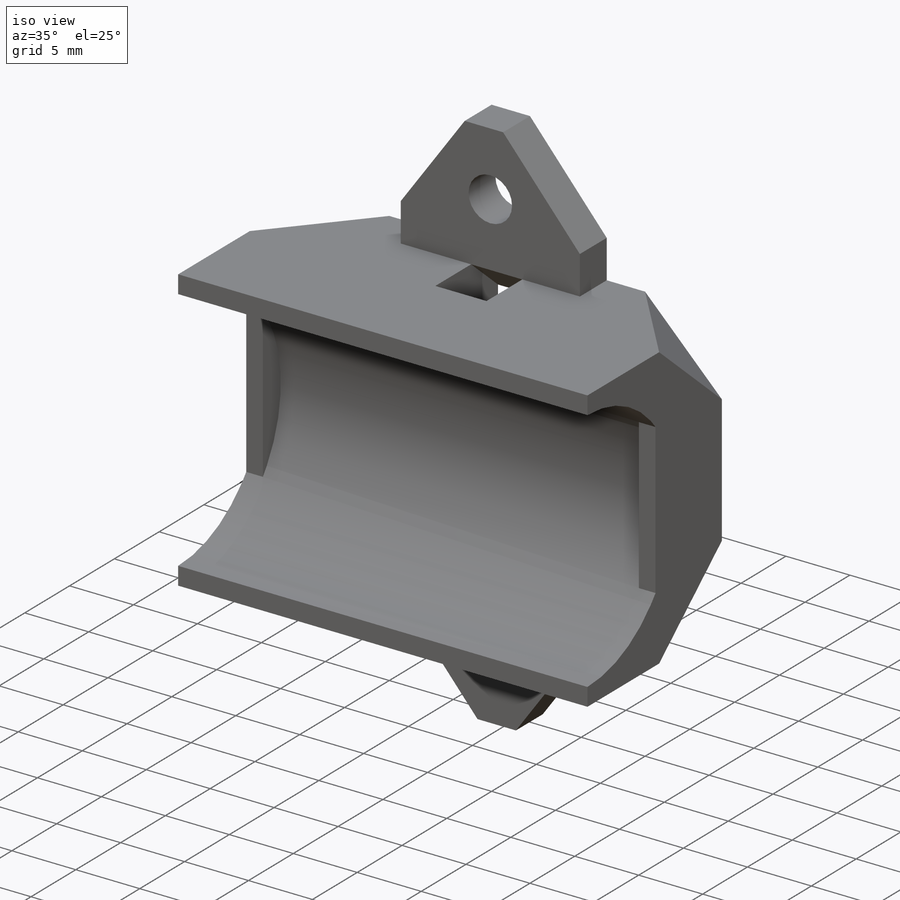
[diagram: iso view]
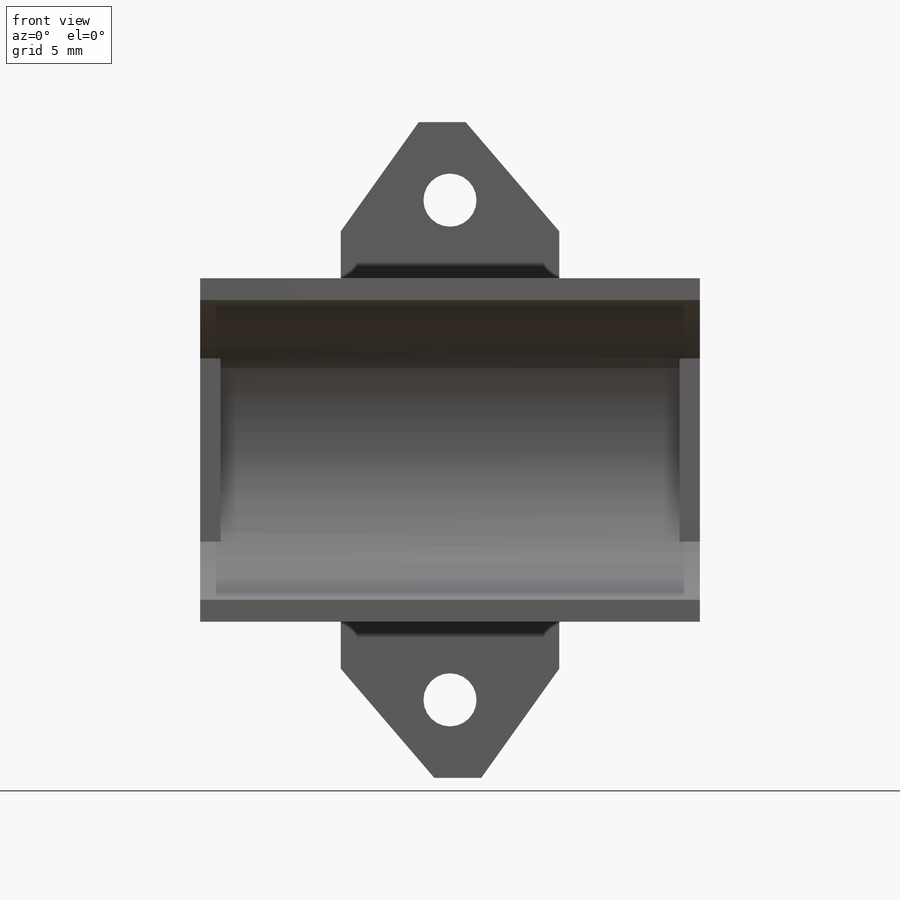
[diagram: front view]
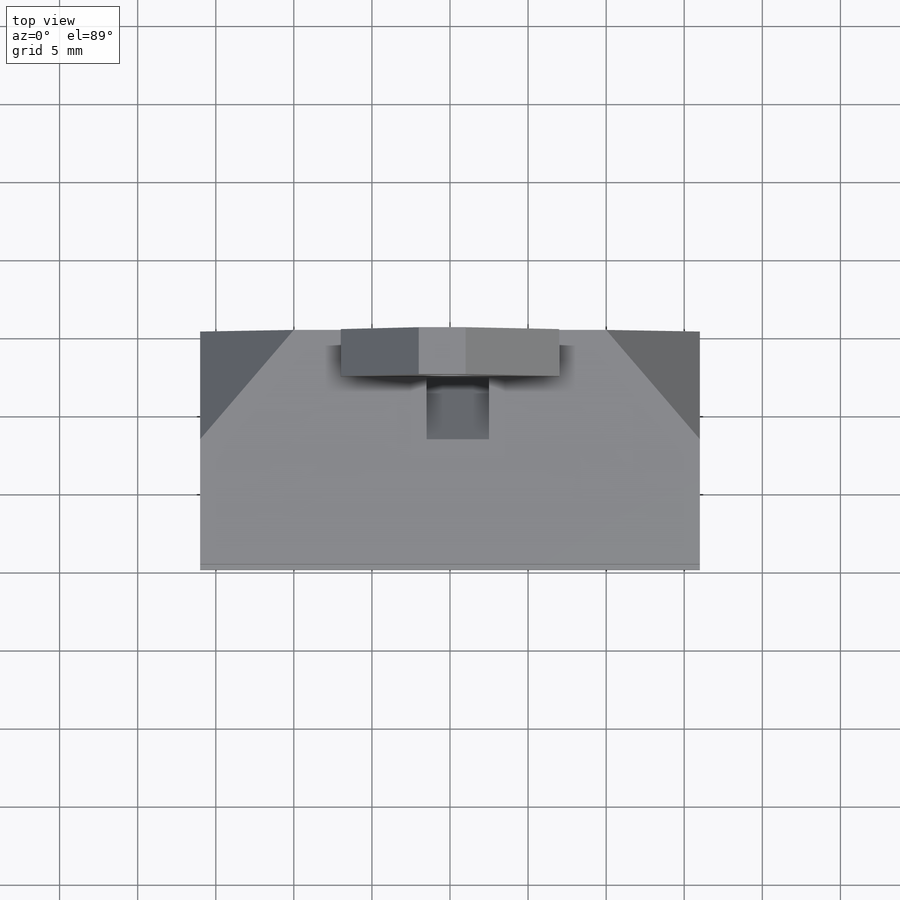
[diagram: top view]
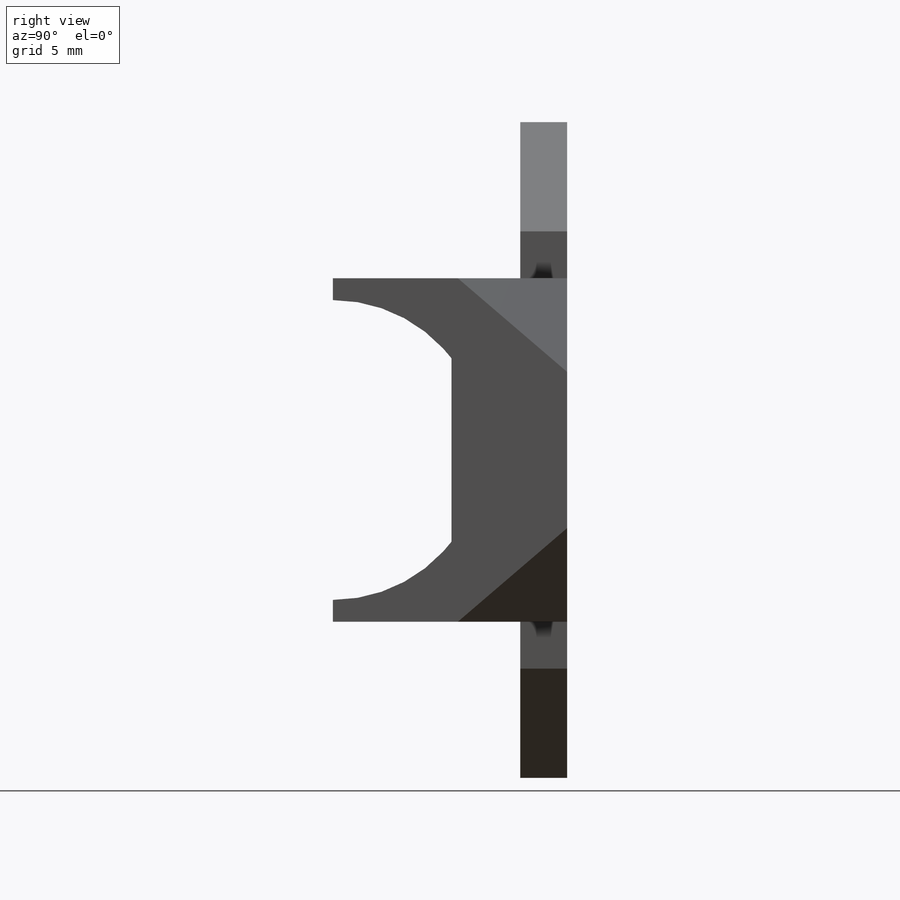
[diagram: right view]
SOLIDWORKS PART (.sldprt)
format: sldprt  version: not decoded by parser v0  size: 266,240 bytes
history: native  units: mm
features: sketch x6, chamfer x6, cut_extrude x4, plane x3, extrude x2, material x1 (+8 scaffold rows collapsed)
feature tree (30):
  scaffold x8  (default folders/planes/origin — collapsed)
  material  "Matériau <non spécifié>"
  plane  "Plan de face"
  plane  "Plan de dessus"
  plane  "Plan de droite"
  sketch  "Esquisse1"  dims[D1=22.0mm D2=32.0mm D3=16.0mm D4=11.0mm]
  extrude  "Boss.-Extru.1"  Depth=15mm
  sketch  "Esquisse2"  dims[D1=19.2mm]
  cut_extrude  "Enlèv. mat.-Extru.1"  Depth=29.4mm
  sketch  "Esquisse4"  dims[D2=9.6mm D3=9.6mm D1=7.6mm]
  cut_extrude  "Enlèv. mat.-Extru.2"  [1 undecoded]
  sketch  "Esquisse5"  dims[D1=10.0mm D2=14.0mm D3=10.0mm D4=14.0mm D5=9.0mm D6=9.0mm D7=10.0mm]
  extrude  "Boss.-Extru.2"  Depth=3mm
  sketch  "Esquisse6"  dims[D1=3.4mm D2=3.4mm D3=7.0mm D4=5.0mm D5=5.0mm D6=7.0mm]
  cut_extrude  "Enlèv. mat.-Extru.3"  [1 undecoded]
  chamfer  "Chanfrein1"  Distance=5mm
  chamfer  "Chanfrein2"  Distance=7mm
  chamfer  "Chanfrein3"  Distance=6mm
  chamfer  "Chanfrein4"  Distance=6mm
  chamfer  "Chanfrein5"  Distance=6mm
  chamfer  "Chanfrein6"  Distance=6mm
  sketch  "Esquisse7"  dims[D1=4.0mm D2=4.0mm]
  cut_extrude  "Enlèv. mat.-Extru.4"  Depth=4mm
decode coverage: 16 of 18 modeling features carry decoded parameters
note: 2 parameter values undecoded
note: suppression state not decoded; provenance and decode notes live in map.json
